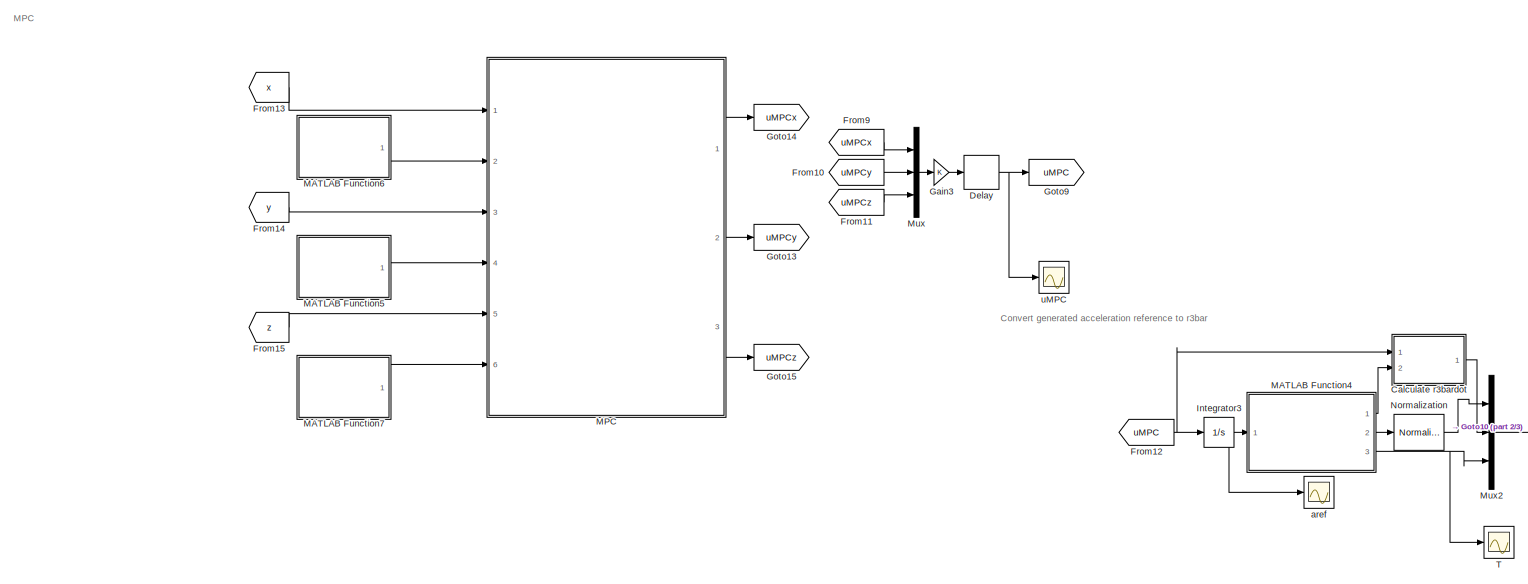
[diagram: root canvas - part 1/3, top left region]
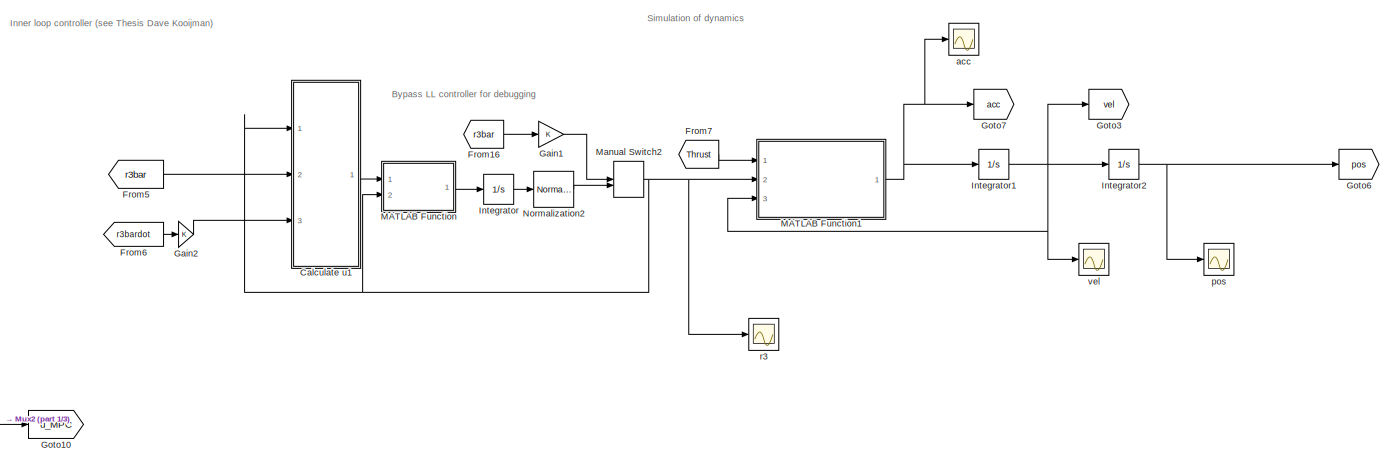
[diagram: root canvas - part 2/3, top right region]
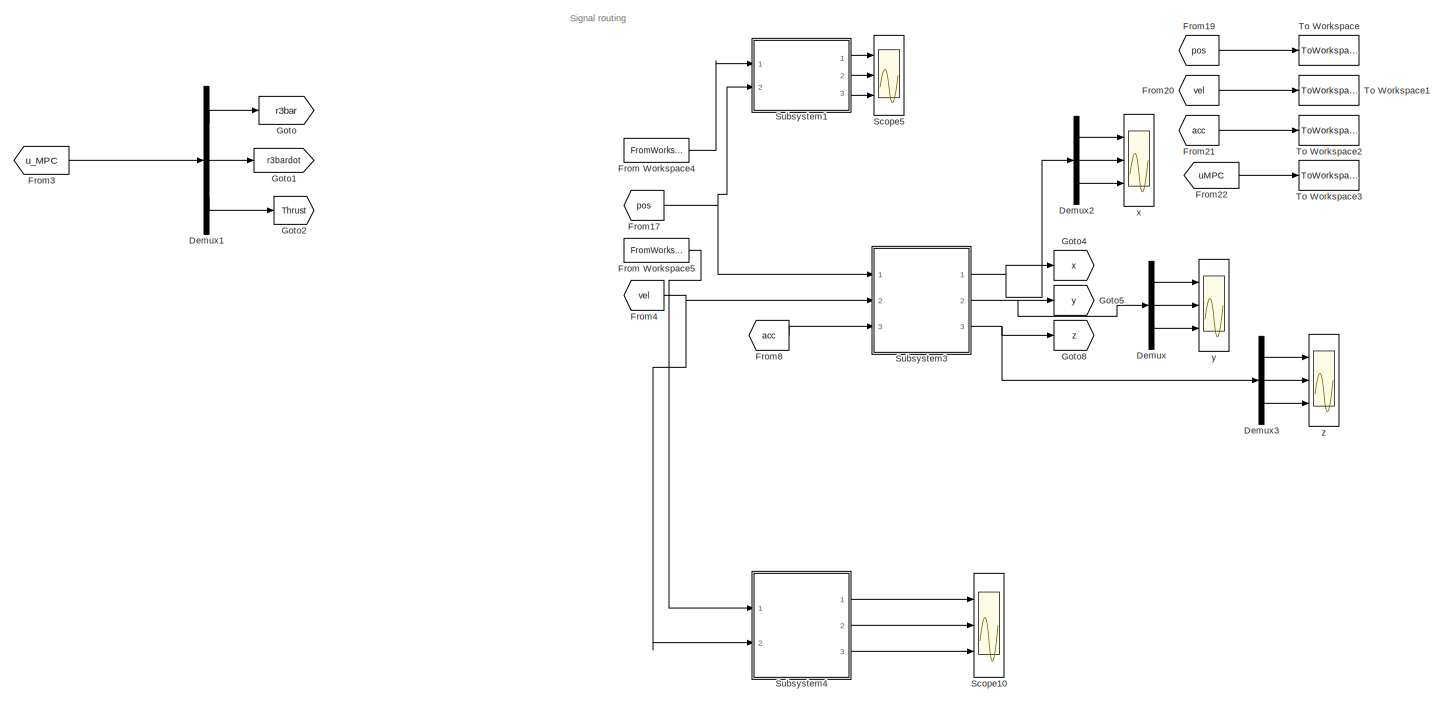
[diagram: root canvas - part 3/3, bottom right region]
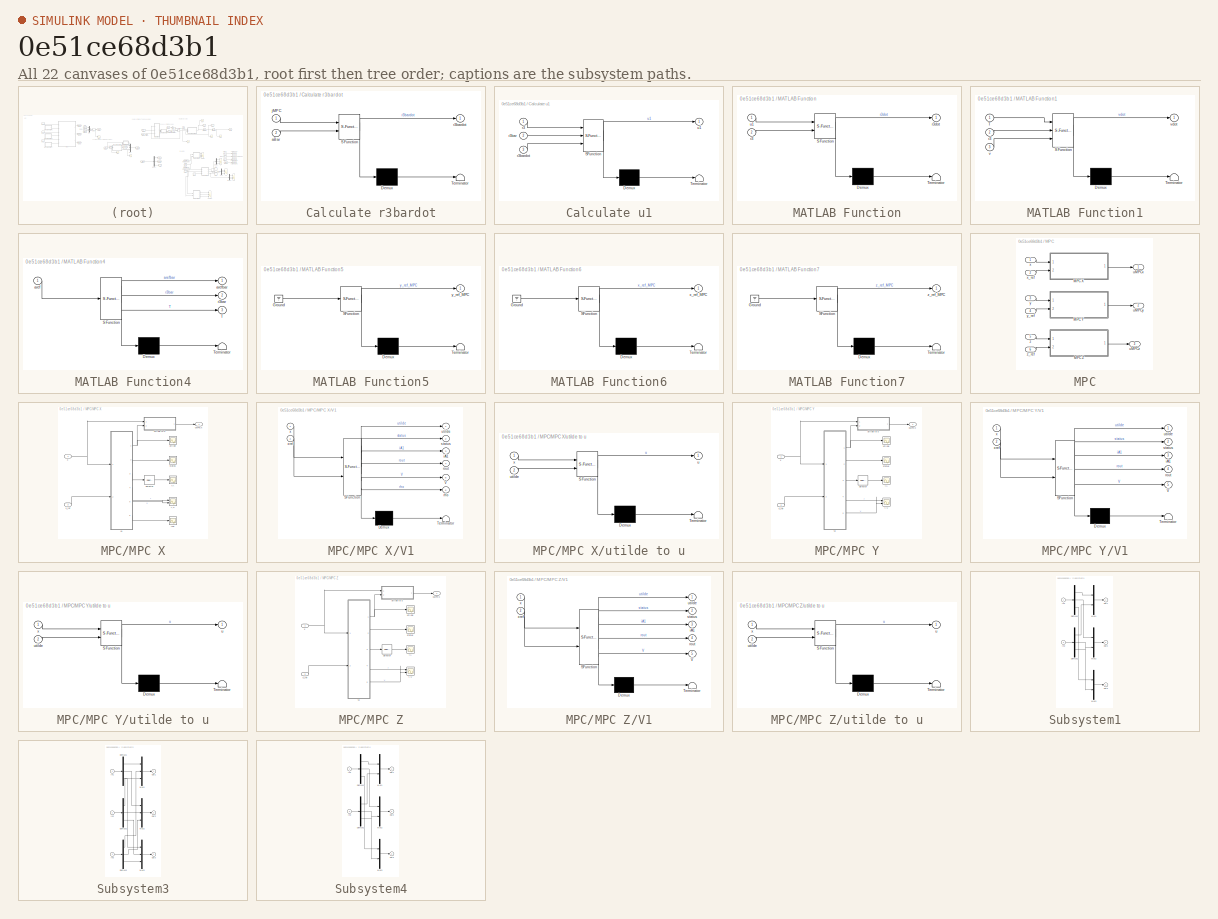
[diagram: thumbnail index - all 22 canvases of the model, root first then tree order]
MODEL slx_0e51ce68d3b1
KIND model
CONFIG AbsTol = auto
CONFIG EnableMultiTasking = off
CONFIG FixedStep = dt
CONFIG MaxStep = auto
CONFIG MinStep = 1e-3
CONFIG RelTol = 1e-3
CONFIG SampleTimeConstraint = Unconstrained
CONFIG Solver = FixedStepAuto
CONFIG SolverName = FixedStepAuto
CONFIG StartTime = 0.0
CONFIG StopTime = tend
BLOCK [SubSystem] Calculate r3bardot
  ErrorFcn = Stateflow.Translate.translate
  PermitHierarchicalResolution = ExplicitOnly
  Ports = [2, 1]
  RequestExecContextInheritance = off
  SFBlockType = MATLAB Function
  TreatAsAtomicUnit = on
BLOCK [Demux] Calculate r3bardot/ Demux 
  Outputs = 1
  Ports = [1, 1]
BLOCK [S-Function] Calculate r3bardot/ SFunction 
  EnableBusSupport = on
  FunctionName = sf_sfun
  PortCounts = [2 2]
  Ports = [2, 2]
  SFcnIsStateOwnerBlock = off
  SFunctionDeploymentMode = off
  Tag = Stateflow S-Function Sim_V1 20
BLOCK [Terminator] Calculate r3bardot/ Terminator 
BLOCK [Inport] Calculate r3bardot/aBar
  IconDisplay = Port number
  Port = 2
BLOCK [Inport] Calculate r3bardot/jMPC
  IconDisplay = Port number
BLOCK [Outport] Calculate r3bardot/r3bardot
  IconDisplay = Port number
BLOCK [SubSystem] Calculate u1
  ErrorFcn = Stateflow.Translate.translate
  PermitHierarchicalResolution = ExplicitOnly
  Ports = [3, 1]
  RequestExecContextInheritance = off
  SFBlockType = MATLAB Function
  TreatAsAtomicUnit = on
BLOCK [Demux] Calculate u1/ Demux 
  Outputs = 1
  Ports = [1, 1]
BLOCK [S-Function] Calculate u1/ SFunction 
  EnableBusSupport = on
  FunctionName = sf_sfun
  PortCounts = [3 2]
  Ports = [3, 2]
  SFcnIsStateOwnerBlock = off
  SFunctionDeploymentMode = off
  Tag = Stateflow S-Function Sim_V1 3
BLOCK [Terminator] Calculate u1/ Terminator 
BLOCK [Inport] Calculate u1/r3
  IconDisplay = Port number
BLOCK [Inport] Calculate u1/r3bar
  IconDisplay = Port number
  Port = 2
BLOCK [Inport] Calculate u1/r3bardot
  IconDisplay = Port number
  Port = 3
BLOCK [Outport] Calculate u1/u1
  IconDisplay = Port number
BLOCK [Delay] Delay
  DelayLength = 1
  InitialCondition = uMPC0
  InputPortMap = u0
  Ports = [1, 1]
  SampleTime = dt
BLOCK [Demux] Demux
  DisplayOption = bar
  Outputs = 3
  Ports = [1, 3]
BLOCK [Demux] Demux1
  DisplayOption = bar
  Outputs = [3,3,1]
  Ports = [1, 3]
BLOCK [Demux] Demux2
  DisplayOption = bar
  Outputs = 3
  Ports = [1, 3]
BLOCK [Demux] Demux3
  DisplayOption = bar
  Outputs = 3
  Ports = [1, 3]
BLOCK [FromWorkspace] From Workspace4
  SampleTime = dt
  VariableName = p_ref
  ZeroCross = on
BLOCK [FromWorkspace] From Workspace5
  SampleTime = dt
  VariableName = v_ref
  ZeroCross = on
BLOCK [From] From10
  GotoTag = uMPCy
BLOCK [From] From11
  GotoTag = uMPCz
BLOCK [From] From12
  GotoTag = uMPC
BLOCK [From] From13
  GotoTag = x
  TagVisibility = global
BLOCK [From] From14
  GotoTag = y
  TagVisibility = global
BLOCK [From] From15
  GotoTag = z
  TagVisibility = global
BLOCK [From] From16
  GotoTag = r3bar
BLOCK [From] From17
  GotoTag = pos
BLOCK [From] From19
  GotoTag = pos
BLOCK [From] From20
  GotoTag = vel
BLOCK [From] From21
  GotoTag = acc
BLOCK [From] From22
  GotoTag = uMPC
BLOCK [From] From3
  GotoTag = u_MPC
BLOCK [From] From4
  GotoTag = vel
BLOCK [From] From5
  GotoTag = r3bar
BLOCK [From] From6
  GotoTag = r3bardot
BLOCK [From] From7
  GotoTag = Thrust
BLOCK [From] From8
  GotoTag = acc
BLOCK [From] From9
  GotoTag = uMPCx
BLOCK [Gain] Gain1
  OutDataTypeStr = Inherit: Inherit via internal rule
  ParamDataTypeStr = Inherit: Inherit via internal rule
  SaturateOnIntegerOverflow = off
BLOCK [Gain] Gain2
  OutDataTypeStr = Inherit: Inherit via internal rule
  ParamDataTypeStr = Inherit: Inherit via internal rule
  SaturateOnIntegerOverflow = off
BLOCK [Gain] Gain3
  OutDataTypeStr = Inherit: Inherit via internal rule
  ParamDataTypeStr = Inherit: Inherit via internal rule
  SaturateOnIntegerOverflow = off
BLOCK [Goto] Goto
  GotoTag = r3bar
BLOCK [Goto] Goto1
  GotoTag = r3bardot
BLOCK [Goto] Goto10
  GotoTag = u_MPC
BLOCK [Goto] Goto13
  GotoTag = uMPCy
BLOCK [Goto] Goto14
  GotoTag = uMPCx
BLOCK [Goto] Goto15
  GotoTag = uMPCz
BLOCK [Goto] Goto2
  GotoTag = Thrust
BLOCK [Goto] Goto3
  GotoTag = vel
BLOCK [Goto] Goto4
  GotoTag = x
  TagVisibility = global
BLOCK [Goto] Goto5
  GotoTag = y
  TagVisibility = global
BLOCK [Goto] Goto6
  GotoTag = pos
BLOCK [Goto] Goto7
  GotoTag = acc
BLOCK [Goto] Goto8
  GotoTag = z
  TagVisibility = global
BLOCK [Goto] Goto9
  GotoTag = uMPC
BLOCK [Integrator] Integrator
  InitialCondition = r30
  Ports = [1, 1]
BLOCK [Integrator] Integrator1
  InitialCondition = v0
  Ports = [1, 1]
BLOCK [Integrator] Integrator2
  InitialCondition = p0
  Ports = [1, 1]
BLOCK [Integrator] Integrator3
  InitialCondition = aref0
  Ports = [1, 1]
BLOCK [SubSystem] MATLAB Function
  ErrorFcn = Stateflow.Translate.translate
  PermitHierarchicalResolution = ExplicitOnly
  Ports = [2, 1]
  RequestExecContextInheritance = off
  SFBlockType = MATLAB Function
  TreatAsAtomicUnit = on
BLOCK [Demux] MATLAB Function/ Demux 
  Outputs = 1
  Ports = [1, 1]
BLOCK [S-Function] MATLAB Function/ SFunction 
  EnableBusSupport = on
  FunctionName = sf_sfun
  PortCounts = [2 2]
  Ports = [2, 2]
  SFcnIsStateOwnerBlock = off
  SFunctionDeploymentMode = off
  Tag = Stateflow S-Function Sim_V1 4
BLOCK [Terminator] MATLAB Function/ Terminator 
BLOCK [Inport] MATLAB Function/r3
  IconDisplay = Port number
  Port = 2
BLOCK [Outport] MATLAB Function/r3dot
  IconDisplay = Port number
BLOCK [Inport] MATLAB Function/u1
  IconDisplay = Port number
BLOCK [SubSystem] MATLAB Function1
  ErrorFcn = Stateflow.Translate.translate
  PermitHierarchicalResolution = ExplicitOnly
  Ports = [3, 1]
  RequestExecContextInheritance = off
  SFBlockType = MATLAB Function
  TreatAsAtomicUnit = on
BLOCK [Demux] MATLAB Function1/ Demux 
  Outputs = 1
  Ports = [1, 1]
BLOCK [S-Function] MATLAB Function1/ SFunction 
  EnableBusSupport = on
  FunctionName = sf_sfun
  Parameters = quad_params
  PortCounts = [3 2]
  Ports = [3, 2]
  SFcnIsStateOwnerBlock = off
  SFunctionDeploymentMode = off
  Tag = Stateflow S-Function Sim_V1 2
BLOCK [Terminator] MATLAB Function1/ Terminator 
BLOCK [Inport] MATLAB Function1/T
  IconDisplay = Port number
BLOCK [Inport] MATLAB Function1/r3
  IconDisplay = Port number
  Port = 2
BLOCK [Inport] MATLAB Function1/v
  IconDisplay = Port number
  Port = 3
BLOCK [Outport] MATLAB Function1/vdot
  IconDisplay = Port number
BLOCK [SubSystem] MATLAB Function4
  ErrorFcn = Stateflow.Translate.translate
  PermitHierarchicalResolution = ExplicitOnly
  Ports = [1, 3]
  RequestExecContextInheritance = off
  SFBlockType = MATLAB Function
  TreatAsAtomicUnit = on
BLOCK [Demux] MATLAB Function4/ Demux 
  Outputs = 1
  Ports = [1, 1]
BLOCK [S-Function] MATLAB Function4/ SFunction 
  EnableBusSupport = on
  FunctionName = sf_sfun
  Parameters = quad_params
  PortCounts = [1 4]
  Ports = [1, 4]
  SFcnIsStateOwnerBlock = off
  SFunctionDeploymentMode = off
  Tag = Stateflow S-Function Sim_V1 19
BLOCK [Terminator] MATLAB Function4/ Terminator 
BLOCK [Outport] MATLAB Function4/T
  IconDisplay = Port number
  Port = 3
BLOCK [Inport] MATLAB Function4/aref
  IconDisplay = Port number
BLOCK [Outport] MATLAB Function4/arefbar
  IconDisplay = Port number
BLOCK [Outport] MATLAB Function4/r3bar
  IconDisplay = Port number
  Port = 2
BLOCK [SubSystem] MATLAB Function5
  ErrorFcn = Stateflow.Translate.translate
  MinAlgLoopOccurrences = on
  PermitHierarchicalResolution = ExplicitOnly
  Ports = [0, 1]
  RequestExecContextInheritance = off
  SFBlockType = MATLAB Function
  TreatAsAtomicUnit = on
BLOCK [Demux] MATLAB Function5/ Demux 
  Outputs = 1
  Ports = [1, 1]
BLOCK [Ground] MATLAB Function5/ Ground 
BLOCK [S-Function] MATLAB Function5/ SFunction 
  EnableBusSupport = on
  FunctionName = sf_sfun
  Parameters = mpc_params
  PortCounts = [1 2]
  Ports = [1, 2]
  SFcnIsStateOwnerBlock = off
  SFunctionDeploymentMode = off
  Tag = Stateflow S-Function Sim_V1 11
BLOCK [Terminator] MATLAB Function5/ Terminator 
BLOCK [Outport] MATLAB Function5/y_ref_MPC
  IconDisplay = Port number
BLOCK [SubSystem] MATLAB Function6
  ErrorFcn = Stateflow.Translate.translate
  MinAlgLoopOccurrences = on
  PermitHierarchicalResolution = ExplicitOnly
  Ports = [0, 1]
  RequestExecContextInheritance = off
  SFBlockType = MATLAB Function
  TreatAsAtomicUnit = on
BLOCK [Demux] MATLAB Function6/ Demux 
  Outputs = 1
  Ports = [1, 1]
BLOCK [Ground] MATLAB Function6/ Ground 
BLOCK [S-Function] MATLAB Function6/ SFunction 
  EnableBusSupport = on
  FunctionName = sf_sfun
  Parameters = mpc_params
  PortCounts = [1 2]
  Ports = [1, 2]
  SFcnIsStateOwnerBlock = off
  SFunctionDeploymentMode = off
  Tag = Stateflow S-Function Sim_V1 14
BLOCK [Terminator] MATLAB Function6/ Terminator 
BLOCK [Outport] MATLAB Function6/x_ref_MPC
  IconDisplay = Port number
BLOCK [SubSystem] MATLAB Function7
  ErrorFcn = Stateflow.Translate.translate
  PermitHierarchicalResolution = ExplicitOnly
  Ports = [0, 1]
  RequestExecContextInheritance = off
  SFBlockType = MATLAB Function
  TreatAsAtomicUnit = on
BLOCK [Demux] MATLAB Function7/ Demux 
  Outputs = 1
  Ports = [1, 1]
BLOCK [Ground] MATLAB Function7/ Ground 
BLOCK [S-Function] MATLAB Function7/ SFunction 
  EnableBusSupport = on
  FunctionName = sf_sfun
  Parameters = mpc_params
  PortCounts = [1 2]
  Ports = [1, 2]
  SFcnIsStateOwnerBlock = off
  SFunctionDeploymentMode = off
  Tag = Stateflow S-Function Sim_V1 22
BLOCK [Terminator] MATLAB Function7/ Terminator 
BLOCK [Outport] MATLAB Function7/z_ref_MPC
  IconDisplay = Port number
BLOCK [SubSystem] MPC
  Ports = [6, 3]
  RequestExecContextInheritance = off
BLOCK [SubSystem] MPC/MPC X
  Ports = [2, 1]
  RequestExecContextInheritance = off
BLOCK [Selector] MPC/MPC X/Selector
  IndexOptions = Index vector (dialog)
  Indices = nconstr-1:nconstr
  InputPortWidth = nconstr
  OutputSizes = 1
  Ports = [1, 1]
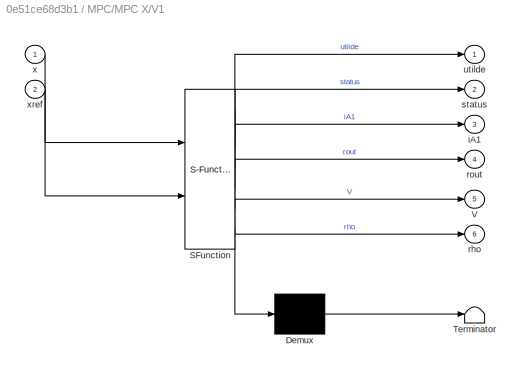
BLOCK [SubSystem] MPC/MPC X/V1
  ErrorFcn = Stateflow.Translate.translate
  PermitHierarchicalResolution = ExplicitOnly
  Ports = [2, 6]
  RequestExecContextInheritance = off
  SFBlockType = MATLAB Function
  SystemSampleTime = dt_MPC
  TreatAsAtomicUnit = on
BLOCK [Demux] MPC/MPC X/V1/ Demux 
  Outputs = 1
  Ports = [1, 1]
BLOCK [S-Function] MPC/MPC X/V1/ SFunction 
  EnableBusSupport = on
  FunctionName = sf_sfun
  Parameters = mpc_params
  PortCounts = [2 7]
  Ports = [2, 7]
  SFcnIsStateOwnerBlock = off
  SFunctionDeploymentMode = off
  Tag = Stateflow S-Function Sim_V1 6
BLOCK [Terminator] MPC/MPC X/V1/ Terminator 
BLOCK [Outport] MPC/MPC X/V1/V
  IconDisplay = Port number
  Port = 5
BLOCK [Outport] MPC/MPC X/V1/iA1
  IconDisplay = Port number
  Port = 3
BLOCK [Outport] MPC/MPC X/V1/rho
  IconDisplay = Port number
  Port = 6
BLOCK [Outport] MPC/MPC X/V1/rout
  IconDisplay = Port number
  Port = 4
BLOCK [Outport] MPC/MPC X/V1/status
  IconDisplay = Port number
  Port = 2
BLOCK [Outport] MPC/MPC X/V1/utilde
  IconDisplay = Port number
BLOCK [Inport] MPC/MPC X/V1/x
  IconDisplay = Port number
BLOCK [Inport] MPC/MPC X/V1/xref
  IconDisplay = Port number
  Port = 2
BLOCK [Scope] MPC/MPC X/iA
  Floating = off
  NumInputPorts = 1
  Ports = [1]
  ScopeSpecificationString = Simulink.scopes.TimeScopeBlockCfg('CurrentConfiguration', extmgr.ConfigurationSet(extmgr.Configuration('Core','General UI',true),extmgr.Configuration('Core','Source UI',true),extmgr.Configuration('Sources','WiredSimulink',true,'DataLoggingVariableName','ScopeData1'),extmgr.Configuration('Visuals','Time Domain',true,'SerializedDisplays',{struct('MinYLimReal','-0.125','MaxYLimReal','1.125','YLabelRe...<+1446ch>  <repeated x3 — deduplicated; at blocks: iA>
BLOCK [Scope] MPC/MPC X/r,V
  Floating = off
  NumInputPorts = 2
  Ports = [2]
  ScopeSpecificationString = Simulink.scopes.TimeScopeBlockCfg('CurrentConfiguration', extmgr.ConfigurationSet(extmgr.Configuration('Core','General UI',true),extmgr.Configuration('Core','Source UI',true),extmgr.Configuration('Sources','WiredSimulink',true,'DataLoggingVariableName','ScopeData1'),extmgr.Configuration('Visuals','Time Domain',true,'SerializedDisplays',{struct('MinYLimReal','0.00195','MaxYLimReal','0.00955','YLabe...<+2104ch>
BLOCK [Scope] MPC/MPC X/rho
  Floating = off
  NumInputPorts = 1
  Ports = [1]
  ScopeSpecificationString = Simulink.scopes.TimeScopeBlockCfg('CurrentConfiguration', extmgr.ConfigurationSet(extmgr.Configuration('Core','General UI',true),extmgr.Configuration('Core','Source UI',true),extmgr.Configuration('Sources','WiredSimulink',true,'DataLoggingVariableName','ScopeData1'),extmgr.Configuration('Visuals','Time Domain',true,'SerializedDisplays',{struct('MinYLimReal','-0.00611','MaxYLimReal','0.06174','YLab...<+1441ch>
BLOCK [Scope] MPC/MPC X/status
  Floating = off
  NumInputPorts = 1
  Ports = [1]
  ScopeSpecificationString = Simulink.scopes.TimeScopeBlockCfg('CurrentConfiguration', extmgr.ConfigurationSet(extmgr.Configuration('Core','General UI',true),extmgr.Configuration('Core','Source UI',true),extmgr.Configuration('Sources','WiredSimulink',true,'DataLoggingVariableName','ScopeData3'),extmgr.Configuration('Visuals','Time Domain',true,'SerializedDisplays',{struct('MinYLimReal','-1.125','MaxYLimReal','20.125','YLabelR...<+1433ch>  <repeated x3 — deduplicated; at blocks: status>
BLOCK [Outport] MPC/MPC X/uMPCx
  IconDisplay = Port number
BLOCK [Scope] MPC/MPC X/utilde
  Floating = off
  NumInputPorts = 1
  Ports = [1]
  ScopeSpecificationString = Simulink.scopes.TimeScopeBlockCfg('CurrentConfiguration', extmgr.ConfigurationSet(extmgr.Configuration('Core','General UI',true),extmgr.Configuration('Core','Source UI',true),extmgr.Configuration('Sources','WiredSimulink',true,'DataLoggingVariableName','ScopeData2'),extmgr.Configuration('Visuals','Time Domain',true,'SerializedDisplays',{struct('MinYLimReal','1.56359','MaxYLimReal','1.5769','YLabel...<+1461ch>
BLOCK [SubSystem] MPC/MPC X/utilde to u
  ErrorFcn = Stateflow.Translate.translate
  PermitHierarchicalResolution = ExplicitOnly
  Ports = [2, 1]
  RequestExecContextInheritance = off
  SFBlockType = MATLAB Function
  TreatAsAtomicUnit = on
BLOCK [Demux] MPC/MPC X/utilde to u/ Demux 
  Outputs = 1
  Ports = [1, 1]
BLOCK [S-Function] MPC/MPC X/utilde to u/ SFunction 
  EnableBusSupport = on
  FunctionName = sf_sfun
  Parameters = mpc_params
  PortCounts = [2 2]
  Ports = [2, 2]
  SFcnIsStateOwnerBlock = off
  SFunctionDeploymentMode = off
  Tag = Stateflow S-Function Sim_V1 7
BLOCK [Terminator] MPC/MPC X/utilde to u/ Terminator 
BLOCK [Outport] MPC/MPC X/utilde to u/u
  IconDisplay = Port number
BLOCK [Inport] MPC/MPC X/utilde to u/utilde
  IconDisplay = Port number
  Port = 2
BLOCK [Inport] MPC/MPC X/utilde to u/x
  IconDisplay = Port number
BLOCK [Inport] MPC/MPC X/x
  IconDisplay = Port number
BLOCK [Inport] MPC/MPC X/x_ref
  IconDisplay = Port number
  Port = 2
BLOCK [SubSystem] MPC/MPC Y
  Ports = [2, 1]
  RequestExecContextInheritance = off
BLOCK [Selector] MPC/MPC Y/Selector
  IndexOptions = Index vector (dialog)
  Indices = nconstr-1:nconstr
  InputPortWidth = nconstr
  OutputSizes = 1
  Ports = [1, 1]
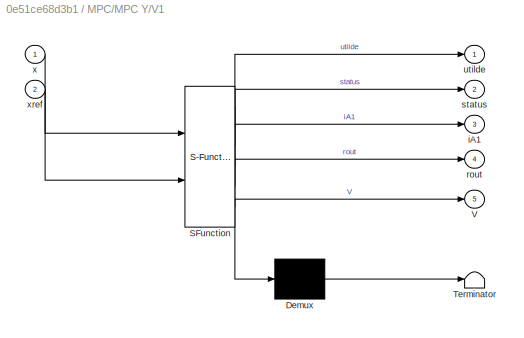
BLOCK [SubSystem] MPC/MPC Y/V1
  ErrorFcn = Stateflow.Translate.translate
  PermitHierarchicalResolution = ExplicitOnly
  Ports = [2, 5]
  RequestExecContextInheritance = off
  SFBlockType = MATLAB Function
  SystemSampleTime = dt_MPC
  TreatAsAtomicUnit = on
BLOCK [Demux] MPC/MPC Y/V1/ Demux 
  Outputs = 1
  Ports = [1, 1]
BLOCK [S-Function] MPC/MPC Y/V1/ SFunction 
  EnableBusSupport = on
  FunctionName = sf_sfun
  Parameters = mpc_params
  PortCounts = [2 6]
  Ports = [2, 6]
  SFcnIsStateOwnerBlock = off
  SFunctionDeploymentMode = off
  Tag = Stateflow S-Function Sim_V1 1
BLOCK [Terminator] MPC/MPC Y/V1/ Terminator 
BLOCK [Outport] MPC/MPC Y/V1/V
  IconDisplay = Port number
  Port = 5
BLOCK [Outport] MPC/MPC Y/V1/iA1
  IconDisplay = Port number
  Port = 3
BLOCK [Outport] MPC/MPC Y/V1/rout
  IconDisplay = Port number
  Port = 4
BLOCK [Outport] MPC/MPC Y/V1/status
  IconDisplay = Port number
  Port = 2
BLOCK [Outport] MPC/MPC Y/V1/utilde
  IconDisplay = Port number
BLOCK [Inport] MPC/MPC Y/V1/x
  IconDisplay = Port number
BLOCK [Inport] MPC/MPC Y/V1/xref
  IconDisplay = Port number
  Port = 2
BLOCK [Scope] MPC/MPC Y/iA
  Floating = off
  NumInputPorts = 1
  Ports = [1]
BLOCK [Scope] MPC/MPC Y/r,V
  Floating = off
  NumInputPorts = 2
  Ports = [2]
  ScopeSpecificationString = Simulink.scopes.TimeScopeBlockCfg('CurrentConfiguration', extmgr.ConfigurationSet(extmgr.Configuration('Core','General UI',true),extmgr.Configuration('Core','Source UI',true),extmgr.Configuration('Sources','WiredSimulink',true,'DataLoggingVariableName','ScopeData1'),extmgr.Configuration('Visuals','Time Domain',true,'SerializedDisplays',{struct('MinYLimReal','-0.0596','MaxYLimReal','1.10662','YLabe...<+2075ch>
BLOCK [Scope] MPC/MPC Y/status
  Floating = off
  NumInputPorts = 1
  Ports = [1]
BLOCK [Outport] MPC/MPC Y/uMPCx
  IconDisplay = Port number
BLOCK [Scope] MPC/MPC Y/utilde
  Floating = off
  NumInputPorts = 1
  Ports = [1]
  ScopeSpecificationString = Simulink.scopes.TimeScopeBlockCfg('CurrentConfiguration', extmgr.ConfigurationSet(extmgr.Configuration('Core','General UI',true),extmgr.Configuration('Core','Source UI',true),extmgr.Configuration('Sources','WiredSimulink',true,'DataLoggingVariableName','ScopeData2'),extmgr.Configuration('Visuals','Time Domain',true,'SerializedDisplays',{struct('MinYLimReal','-62.5','MaxYLimReal','62.5','YLabelReal...<+1423ch>
BLOCK [SubSystem] MPC/MPC Y/utilde to u
  ErrorFcn = Stateflow.Translate.translate
  PermitHierarchicalResolution = ExplicitOnly
  Ports = [2, 1]
  RequestExecContextInheritance = off
  SFBlockType = MATLAB Function
  TreatAsAtomicUnit = on
BLOCK [Demux] MPC/MPC Y/utilde to u/ Demux 
  Outputs = 1
  Ports = [1, 1]
BLOCK [S-Function] MPC/MPC Y/utilde to u/ SFunction 
  EnableBusSupport = on
  FunctionName = sf_sfun
  Parameters = mpc_params
  PortCounts = [2 2]
  Ports = [2, 2]
  SFcnIsStateOwnerBlock = off
  SFunctionDeploymentMode = off
  Tag = Stateflow S-Function Sim_V1 5
BLOCK [Terminator] MPC/MPC Y/utilde to u/ Terminator 
BLOCK [Outport] MPC/MPC Y/utilde to u/u
  IconDisplay = Port number
BLOCK [Inport] MPC/MPC Y/utilde to u/utilde
  IconDisplay = Port number
  Port = 2
BLOCK [Inport] MPC/MPC Y/utilde to u/x
  IconDisplay = Port number
BLOCK [Inport] MPC/MPC Y/x
  IconDisplay = Port number
BLOCK [Inport] MPC/MPC Y/x_ref
  IconDisplay = Port number
  Port = 2
BLOCK [SubSystem] MPC/MPC Z
  Ports = [2, 1]
  RequestExecContextInheritance = off
BLOCK [Selector] MPC/MPC Z/Selector
  IndexOptions = Index vector (dialog)
  Indices = nconstr-1:nconstr
  InputPortWidth = nconstr
  OutputSizes = 1
  Ports = [1, 1]
BLOCK [SubSystem] MPC/MPC Z/V1
  ErrorFcn = Stateflow.Translate.translate
  PermitHierarchicalResolution = ExplicitOnly
  Ports = [2, 5]
  RequestExecContextInheritance = off
  SFBlockType = MATLAB Function
  SystemSampleTime = dt_MPC
  TreatAsAtomicUnit = on
BLOCK [Demux] MPC/MPC Z/V1/ Demux 
  Outputs = 1
  Ports = [1, 1]
BLOCK [S-Function] MPC/MPC Z/V1/ SFunction 
  EnableBusSupport = on
  FunctionName = sf_sfun
  Parameters = mpc_params
  PortCounts = [2 6]
  Ports = [2, 6]
  SFcnIsStateOwnerBlock = off
  SFunctionDeploymentMode = off
  Tag = Stateflow S-Function Sim_V1 8
BLOCK [Terminator] MPC/MPC Z/V1/ Terminator 
BLOCK [Outport] MPC/MPC Z/V1/V
  IconDisplay = Port number
  Port = 5
BLOCK [Outport] MPC/MPC Z/V1/iA1
  IconDisplay = Port number
  Port = 3
BLOCK [Outport] MPC/MPC Z/V1/rout
  IconDisplay = Port number
  Port = 4
BLOCK [Outport] MPC/MPC Z/V1/status
  IconDisplay = Port number
  Port = 2
BLOCK [Outport] MPC/MPC Z/V1/utilde
  IconDisplay = Port number
BLOCK [Inport] MPC/MPC Z/V1/x
  IconDisplay = Port number
BLOCK [Inport] MPC/MPC Z/V1/xref
  IconDisplay = Port number
  Port = 2
BLOCK [Scope] MPC/MPC Z/iA
  Floating = off
  NumInputPorts = 1
  Ports = [1]
BLOCK [Scope] MPC/MPC Z/r,V
  Floating = off
  NumInputPorts = 2
  Ports = [2]
  ScopeSpecificationString = Simulink.scopes.TimeScopeBlockCfg('CurrentConfiguration', extmgr.ConfigurationSet(extmgr.Configuration('Core','General UI',true),extmgr.Configuration('Core','Source UI',true),extmgr.Configuration('Sources','WiredSimulink',true,'DataLoggingVariableName','ScopeData1'),extmgr.Configuration('Visuals','Time Domain',true,'SerializedDisplays',{struct('MinYLimReal','-0.07863','MaxYLimReal','1.10874','YLab...<+2076ch>
BLOCK [Scope] MPC/MPC Z/status
  Floating = off
  NumInputPorts = 1
  Ports = [1]
BLOCK [Outport] MPC/MPC Z/uMPCx
  IconDisplay = Port number
BLOCK [Scope] MPC/MPC Z/utilde
  Floating = off
  NumInputPorts = 1
  Ports = [1]
  ScopeSpecificationString = Simulink.scopes.TimeScopeBlockCfg('CurrentConfiguration', extmgr.ConfigurationSet(extmgr.Configuration('Core','General UI',true),extmgr.Configuration('Core','Source UI',true),extmgr.Configuration('Sources','WiredSimulink',true,'DataLoggingVariableName','ScopeData2'),extmgr.Configuration('Visuals','Time Domain',true,'SerializedDisplays',{struct('MinYLimReal','-62.5','MaxYLimReal','62.5','YLabelReal...<+1423ch>
BLOCK [SubSystem] MPC/MPC Z/utilde to u
  ErrorFcn = Stateflow.Translate.translate
  PermitHierarchicalResolution = ExplicitOnly
  Ports = [2, 1]
  RequestExecContextInheritance = off
  SFBlockType = MATLAB Function
  TreatAsAtomicUnit = on
BLOCK [Demux] MPC/MPC Z/utilde to u/ Demux 
  Outputs = 1
  Ports = [1, 1]
BLOCK [S-Function] MPC/MPC Z/utilde to u/ SFunction 
  EnableBusSupport = on
  FunctionName = sf_sfun
  Parameters = mpc_params
  PortCounts = [2 2]
  Ports = [2, 2]
  SFcnIsStateOwnerBlock = off
  SFunctionDeploymentMode = off
  Tag = Stateflow S-Function Sim_V1 9
BLOCK [Terminator] MPC/MPC Z/utilde to u/ Terminator 
BLOCK [Outport] MPC/MPC Z/utilde to u/u
  IconDisplay = Port number
BLOCK [Inport] MPC/MPC Z/utilde to u/utilde
  IconDisplay = Port number
  Port = 2
BLOCK [Inport] MPC/MPC Z/utilde to u/x
  IconDisplay = Port number
BLOCK [Inport] MPC/MPC Z/x
  IconDisplay = Port number
BLOCK [Inport] MPC/MPC Z/x_ref
  IconDisplay = Port number
  Port = 2
BLOCK [Outport] MPC/uMPCx
  IconDisplay = Port number
BLOCK [Outport] MPC/uMPCy
  IconDisplay = Port number
  Port = 2
BLOCK [Outport] MPC/uMPCz
  IconDisplay = Port number
  Port = 3
BLOCK [Inport] MPC/x
  IconDisplay = Port number
BLOCK [Inport] MPC/x_ref
  IconDisplay = Port number
  Port = 2
BLOCK [Inport] MPC/y
  IconDisplay = Port number
  Port = 3
BLOCK [Inport] MPC/y_ref
  IconDisplay = Port number
  Port = 4
BLOCK [Inport] MPC/z
  IconDisplay = Port number
  Port = 5
BLOCK [Inport] MPC/z_ref
  IconDisplay = Port number
  Port = 6
BLOCK [ManualSwitch] Manual Switch2
  CurrentSetting = 0
BLOCK [Mux] Mux
  DisplayOption = bar
  Inputs = 3
  Ports = [3, 1]
BLOCK [Mux] Mux2
  DisplayOption = bar
  Inputs = 3
  Ports = [3, 1]
BLOCK [Reference] Normalization  REF=dspmathops/Normalization
  Ports = [1, 1]
  SourceBlock = dspmathops/Normalization
  SourceProductBaseCode = DS
  SourceProductName = DSP System Toolbox
  SourceType = Normalization
BLOCK [Reference] Normalization2  REF=dspmathops/Normalization
  Ports = [1, 1]
  SourceBlock = dspmathops/Normalization
  SourceProductBaseCode = DS
  SourceProductName = DSP System Toolbox
  SourceType = Normalization
BLOCK [Scope] Scope10
  Floating = off
  NumInputPorts = 3
  Ports = [3]
  ScopeSpecificationString = Simulink.scopes.TimeScopeBlockCfg('CurrentConfiguration', extmgr.ConfigurationSet(extmgr.Configuration('Core','General UI',true),extmgr.Configuration('Core','Source UI',true),extmgr.Configuration('Sources','WiredSimulink',true,'DataLoggingVariableName','ScopeData1'),extmgr.Configuration('Visuals','Time Domain',true,'SerializedDisplays',{struct('MinYLimReal','-1.00000','MaxYLimReal','1.00000','YLab...<+2918ch>
BLOCK [Scope] Scope5
  Floating = off
  NumInputPorts = 3
  Ports = [3]
  ScopeSpecificationString = Simulink.scopes.TimeScopeBlockCfg('CurrentConfiguration', extmgr.ConfigurationSet(extmgr.Configuration('Core','General UI',true),extmgr.Configuration('Core','Source UI',true),extmgr.Configuration('Sources','WiredSimulink',true,'DataLoggingVariableName','ScopeData5'),extmgr.Configuration('Visuals','Time Domain',true,'SerializedDisplays',{struct('MinYLimReal','-24.68878','MaxYLimReal','25.51791','YL...<+2907ch>
BLOCK [SubSystem] Subsystem1
  Ports = [2, 3]
  RequestExecContextInheritance = off
BLOCK [Demux] Subsystem1/Demux1
  DisplayOption = bar
  Outputs = 3
  Ports = [1, 3]
BLOCK [Demux] Subsystem1/Demux2
  DisplayOption = bar
  Outputs = 3
  Ports = [1, 3]
BLOCK [Inport] Subsystem1/In1
  IconDisplay = Port number
BLOCK [Inport] Subsystem1/In2
  IconDisplay = Port number
  Port = 2
BLOCK [Mux] Subsystem1/Mux1
  DisplayOption = bar
  Inputs = 2
  Ports = [2, 1]
BLOCK [Mux] Subsystem1/Mux2
  DisplayOption = bar
  Inputs = 2
  Ports = [2, 1]
BLOCK [Mux] Subsystem1/Mux3
  DisplayOption = bar
  Inputs = 2
  Ports = [2, 1]
BLOCK [Outport] Subsystem1/Out1
  IconDisplay = Port number
BLOCK [Outport] Subsystem1/Out2
  IconDisplay = Port number
  Port = 2
BLOCK [Outport] Subsystem1/Out3
  IconDisplay = Port number
  Port = 3
BLOCK [SubSystem] Subsystem3
  Ports = [3, 3]
  RequestExecContextInheritance = off
BLOCK [Demux] Subsystem3/Demux1
  DisplayOption = bar
  Outputs = 3
  Ports = [1, 3]
BLOCK [Demux] Subsystem3/Demux2
  DisplayOption = bar
  Outputs = 3
  Ports = [1, 3]
BLOCK [Demux] Subsystem3/Demux3
  DisplayOption = bar
  Outputs = 3
  Ports = [1, 3]
BLOCK [Inport] Subsystem3/In1
  IconDisplay = Port number
BLOCK [Inport] Subsystem3/In2
  IconDisplay = Port number
  Port = 2
BLOCK [Inport] Subsystem3/In3
  IconDisplay = Port number
  Port = 3
BLOCK [Mux] Subsystem3/Mux1
  DisplayOption = bar
  Inputs = 3
  Ports = [3, 1]
BLOCK [Mux] Subsystem3/Mux2
  DisplayOption = bar
  Inputs = 3
  Ports = [3, 1]
BLOCK [Mux] Subsystem3/Mux3
  DisplayOption = bar
  Inputs = 3
  Ports = [3, 1]
BLOCK [Outport] Subsystem3/Out1
  IconDisplay = Port number
BLOCK [Outport] Subsystem3/Out2
  IconDisplay = Port number
  Port = 2
BLOCK [Outport] Subsystem3/Out3
  IconDisplay = Port number
  Port = 3
BLOCK [SubSystem] Subsystem4
  Ports = [2, 3]
  RequestExecContextInheritance = off
BLOCK [Demux] Subsystem4/Demux1
  DisplayOption = bar
  Outputs = 3
  Ports = [1, 3]
BLOCK [Demux] Subsystem4/Demux2
  DisplayOption = bar
  Outputs = 3
  Ports = [1, 3]
BLOCK [Inport] Subsystem4/In1
  IconDisplay = Port number
BLOCK [Inport] Subsystem4/In2
  IconDisplay = Port number
  Port = 2
BLOCK [Mux] Subsystem4/Mux1
  DisplayOption = bar
  Inputs = 2
  Ports = [2, 1]
BLOCK [Mux] Subsystem4/Mux2
  DisplayOption = bar
  Inputs = 2
  Ports = [2, 1]
BLOCK [Mux] Subsystem4/Mux3
  DisplayOption = bar
  Inputs = 2
  Ports = [2, 1]
BLOCK [Outport] Subsystem4/Out1
  IconDisplay = Port number
BLOCK [Outport] Subsystem4/Out2
  IconDisplay = Port number
  Port = 2
BLOCK [Outport] Subsystem4/Out3
  IconDisplay = Port number
  Port = 3
BLOCK [Scope] T
  Floating = off
  NumInputPorts = 1
  Ports = [1]
  ScopeSpecificationString = Simulink.scopes.TimeScopeBlockCfg('CurrentConfiguration', extmgr.ConfigurationSet(extmgr.Configuration('Core','General UI',true),extmgr.Configuration('Core','Source UI',true),extmgr.Configuration('Sources','WiredSimulink',true,'DataLoggingVariableName','ScopeData1'),extmgr.Configuration('Visuals','Time Domain',true,'SerializedDisplays',{struct('MinYLimReal','9.80933','MaxYLimReal','9.81126','YLabe...<+1447ch>
BLOCK [ToWorkspace] To Workspace
  FixptAsFi = on
  MaxDataPoints = inf
  Ports = [1]
  SampleTime = -1
  Save2DSignal = 2-D array (concatenate along first dimension)
  VariableName = pos
BLOCK [ToWorkspace] To Workspace1
  FixptAsFi = on
  MaxDataPoints = inf
  Ports = [1]
  SampleTime = -1
  Save2DSignal = 2-D array (concatenate along first dimension)
  VariableName = vel
BLOCK [ToWorkspace] To Workspace2
  FixptAsFi = on
  MaxDataPoints = inf
  Ports = [1]
  SampleTime = -1
  Save2DSignal = 2-D array (concatenate along first dimension)
  VariableName = acc
BLOCK [ToWorkspace] To Workspace3
  FixptAsFi = on
  MaxDataPoints = inf
  Ports = [1]
  SampleTime = -1
  Save2DSignal = 2-D array (concatenate along first dimension)
  VariableName = uMPC
BLOCK [Scope] acc
  Floating = off
  NumInputPorts = 1
  Ports = [1]
  ScopeSpecificationString = Simulink.scopes.TimeScopeBlockCfg('CurrentConfiguration', extmgr.ConfigurationSet(extmgr.Configuration('Core','General UI',true),extmgr.Configuration('Core','Source UI',true),extmgr.Configuration('Sources','WiredSimulink',true,'DataLoggingVariableName','ScopeData2'),extmgr.Configuration('Visuals','Time Domain',true,'SerializedDisplays',{struct('MinYLimReal','-3.04878','MaxYLimReal','3.04878','YLab...<+1495ch>
BLOCK [Scope] aref
  Floating = off
  NumInputPorts = 1
  Ports = [1]
  ScopeSpecificationString = Simulink.scopes.TimeScopeBlockCfg('CurrentConfiguration', extmgr.ConfigurationSet(extmgr.Configuration('Core','General UI',true),extmgr.Configuration('Core','Source UI',true),extmgr.Configuration('Sources','WiredSimulink',true,'DataLoggingVariableName','ScopeData2'),extmgr.Configuration('Visuals','Time Domain',true,'SerializedDisplays',{struct('MinYLimReal','-2.62838','MaxYLimReal','5.44486','YLab...<+1477ch>
BLOCK [Scope] pos
  Floating = off
  NumInputPorts = 1
  Ports = [1]
  ScopeSpecificationString = Simulink.scopes.TimeScopeBlockCfg('CurrentConfiguration', extmgr.ConfigurationSet(extmgr.Configuration('Core','General UI',true),extmgr.Configuration('Core','Source UI',true),extmgr.Configuration('Sources','WiredSimulink',true,'DataLoggingVariableName','ScopeData1'),extmgr.Configuration('Visuals','Time Domain',true,'SerializedDisplays',{struct('MinYLimReal','-14.07022','MaxYLimReal','7.40645','YLa...<+1458ch>
BLOCK [Scope] r3
  Floating = off
  NumInputPorts = 1
  Ports = [1]
  ScopeSpecificationString = Simulink.scopes.TimeScopeBlockCfg('CurrentConfiguration', extmgr.ConfigurationSet(extmgr.Configuration('Core','General UI',true),extmgr.Configuration('Core','Source UI',true),extmgr.Configuration('Sources','WiredSimulink',true,'DataLoggingVariableName','ScopeData2'),extmgr.Configuration('Visuals','Time Domain',true,'SerializedDisplays',{struct('MinYLimReal','-1.24578','MaxYLimReal','1.24953','YLab...<+1492ch>
BLOCK [Scope] uMPC
  Floating = off
  NumInputPorts = 1
  Ports = [1]
  ScopeSpecificationString = Simulink.scopes.TimeScopeBlockCfg('CurrentConfiguration', extmgr.ConfigurationSet(extmgr.Configuration('Core','General UI',true),extmgr.Configuration('Core','Source UI',true),extmgr.Configuration('Sources','WiredSimulink',true,'DataLoggingVariableName','ScopeData1'),extmgr.Configuration('Visuals','Time Domain',true,'SerializedDisplays',{struct('MinYLimReal','-70.99668','MaxYLimReal','38.97014','YL...<+1538ch>
BLOCK [Scope] vel
  Floating = off
  NumInputPorts = 1
  Ports = [1]
  ScopeSpecificationString = Simulink.scopes.TimeScopeBlockCfg('CurrentConfiguration', extmgr.ConfigurationSet(extmgr.Configuration('Core','General UI',true),extmgr.Configuration('Core','Source UI',true),extmgr.Configuration('Sources','WiredSimulink',true,'DataLoggingVariableName','ScopeData2'),extmgr.Configuration('Visuals','Time Domain',true,'SerializedDisplays',{struct('MinYLimReal','-3.9766','MaxYLimReal','5.78944','YLabe...<+1477ch>
BLOCK [Scope] x
  Floating = off
  NumInputPorts = 3
  Ports = [3]
  ScopeSpecificationString = Simulink.scopes.TimeScopeBlockCfg('CurrentConfiguration', extmgr.ConfigurationSet(extmgr.Configuration('Core','General UI',true),extmgr.Configuration('Core','Source UI',true),extmgr.Configuration('Sources','WiredSimulink',true,'DataLoggingVariableName','ScopeData1'),extmgr.Configuration('Visuals','Time Domain',true,'SerializedDisplays',{struct('MinYLimReal','-13.53943','MaxYLimReal','2.87319','YLa...<+2749ch>
BLOCK [Scope] y
  Floating = off
  NumInputPorts = 3
  Ports = [3]
  ScopeSpecificationString = Simulink.scopes.TimeScopeBlockCfg('CurrentConfiguration', extmgr.ConfigurationSet(extmgr.Configuration('Core','General UI',true),extmgr.Configuration('Core','Source UI',true),extmgr.Configuration('Sources','WiredSimulink',true,'DataLoggingVariableName','ScopeData4'),extmgr.Configuration('Visuals','Time Domain',true,'SerializedDisplays',{struct('MinYLimReal','-1.30574','MaxYLimReal','5.70064','YLab...<+2753ch>
BLOCK [Scope] z
  Floating = off
  NumInputPorts = 3
  Ports = [3]
  ScopeSpecificationString = Simulink.scopes.TimeScopeBlockCfg('CurrentConfiguration', extmgr.ConfigurationSet(extmgr.Configuration('Core','General UI',true),extmgr.Configuration('Core','Source UI',true),extmgr.Configuration('Sources','WiredSimulink',true,'DataLoggingVariableName','ScopeData3'),extmgr.Configuration('Visuals','Time Domain',true,'SerializedDisplays',{struct('MinYLimReal','-0.98706','MaxYLimReal','4.41361','YLab...<+2751ch>
ANNOTATION (root): Inner loop controller (see Thesis Dave Kooijman)
ANNOTATION (root): Simulation of dynamics
ANNOTATION (root): Bypass LL controller for debugging
ANNOTATION (root): Convert generated acceleration reference to r3bar
ANNOTATION (root): MPC
ANNOTATION (root): Signal routing
LINE Calculate r3bardot:1 -> Mux2:2
LINE Calculate u1:1 -> MATLAB Function:1
NET Delay:1 -> Goto9:1, uMPC:1
LINE Demux1:1 -> Goto:1
LINE Demux1:2 -> Goto1:1
LINE Demux1:3 -> Goto2:1
LINE Demux2:1 -> x:1
LINE Demux2:2 -> x:2
LINE Demux2:3 -> x:3
LINE Demux3:1 -> z:1
LINE Demux3:2 -> z:2
LINE Demux3:3 -> z:3
LINE Demux:1 -> y:1
LINE Demux:2 -> y:2
LINE Demux:3 -> y:3
LINE From Workspace4:1 -> Subsystem1:1
LINE From Workspace5:1 -> Subsystem4:1
LINE From10:1 -> Mux:2
LINE From11:1 -> Mux:3
NET From12:1 -> Calculate r3bardot:1, Integrator3:1
LINE From13:1 -> MPC:1
LINE From14:1 -> MPC:3
LINE From15:1 -> MPC:5
LINE From16:1 -> Gain1:1
NET From17:1 -> Subsystem1:2, Subsystem3:1
LINE From19:1 -> To Workspace:1
LINE From20:1 -> To Workspace1:1
LINE From21:1 -> To Workspace2:1
LINE From22:1 -> To Workspace3:1
LINE From3:1 -> Demux1:1
NET From4:1 -> Subsystem3:2, Subsystem4:2
LINE From5:1 -> Calculate u1:2
LINE From6:1 -> Gain2:1
LINE From7:1 -> MATLAB Function1:1
LINE From8:1 -> Subsystem3:3
LINE From9:1 -> Mux:1
LINE Gain1:1 -> Manual Switch2:1
LINE Gain2:1 -> Calculate u1:3
LINE Gain3:1 -> Delay:1
NET Integrator1:1 -> Goto3:1, Integrator2:1, MATLAB Function1:3, vel:1
NET Integrator2:1 -> Goto6:1, pos:1
NET Integrator3:1 -> MATLAB Function4:1, aref:1
LINE Integrator:1 -> Normalization2:1
NET MATLAB Function1:1 -> Goto7:1, Integrator1:1, acc:1
LINE MATLAB Function4:1 -> Calculate r3bardot:2
LINE MATLAB Function4:2 -> Normalization:1
NET MATLAB Function4:3 -> Mux2:3, T:1
LINE MATLAB Function5:1 -> MPC:4
LINE MATLAB Function6:1 -> MPC:2
LINE MATLAB Function7:1 -> MPC:6
LINE MATLAB Function:1 -> Integrator:1
LINE MPC/MPC X/Selector:1 -> MPC/MPC X/iA:1
NET MPC/MPC X/V1:1 -> MPC/MPC X/utilde to u:2, MPC/MPC X/utilde:1
LINE MPC/MPC X/V1:2 -> MPC/MPC X/status:1
LINE MPC/MPC X/V1:3 -> MPC/MPC X/Selector:1
LINE MPC/MPC X/V1:4 -> MPC/MPC X/r,V:1
LINE MPC/MPC X/V1:5 -> MPC/MPC X/r,V:2
LINE MPC/MPC X/V1:6 -> MPC/MPC X/rho:1
LINE MPC/MPC X/utilde to u:1 -> MPC/MPC X/uMPCx:1
NET MPC/MPC X/x:1 -> MPC/MPC X/V1:1, MPC/MPC X/utilde to u:1
LINE MPC/MPC X/x_ref:1 -> MPC/MPC X/V1:2
LINE MPC/MPC X:1 -> MPC/uMPCx:1
LINE MPC/MPC Y/Selector:1 -> MPC/MPC Y/iA:1
NET MPC/MPC Y/V1:1 -> MPC/MPC Y/utilde to u:2, MPC/MPC Y/utilde:1
LINE MPC/MPC Y/V1:2 -> MPC/MPC Y/status:1
LINE MPC/MPC Y/V1:3 -> MPC/MPC Y/Selector:1
LINE MPC/MPC Y/V1:4 -> MPC/MPC Y/r,V:1
LINE MPC/MPC Y/V1:5 -> MPC/MPC Y/r,V:2
LINE MPC/MPC Y/utilde to u:1 -> MPC/MPC Y/uMPCx:1
NET MPC/MPC Y/x:1 -> MPC/MPC Y/V1:1, MPC/MPC Y/utilde to u:1
LINE MPC/MPC Y/x_ref:1 -> MPC/MPC Y/V1:2
LINE MPC/MPC Y:1 -> MPC/uMPCy:1
LINE MPC/MPC Z/Selector:1 -> MPC/MPC Z/iA:1
NET MPC/MPC Z/V1:1 -> MPC/MPC Z/utilde to u:2, MPC/MPC Z/utilde:1
LINE MPC/MPC Z/V1:2 -> MPC/MPC Z/status:1
LINE MPC/MPC Z/V1:3 -> MPC/MPC Z/Selector:1
LINE MPC/MPC Z/V1:4 -> MPC/MPC Z/r,V:1
LINE MPC/MPC Z/V1:5 -> MPC/MPC Z/r,V:2
LINE MPC/MPC Z/utilde to u:1 -> MPC/MPC Z/uMPCx:1
NET MPC/MPC Z/x:1 -> MPC/MPC Z/V1:1, MPC/MPC Z/utilde to u:1
LINE MPC/MPC Z/x_ref:1 -> MPC/MPC Z/V1:2
LINE MPC/MPC Z:1 -> MPC/uMPCz:1
LINE MPC/x:1 -> MPC/MPC X:1
LINE MPC/x_ref:1 -> MPC/MPC X:2
LINE MPC/y:1 -> MPC/MPC Y:1
LINE MPC/y_ref:1 -> MPC/MPC Y:2
LINE MPC/z:1 -> MPC/MPC Z:1
LINE MPC/z_ref:1 -> MPC/MPC Z:2
LINE MPC:1 -> Goto14:1
LINE MPC:2 -> Goto13:1
LINE MPC:3 -> Goto15:1
NET Manual Switch2:1 -> Calculate u1:1, MATLAB Function1:2, MATLAB Function:2, r3:1
LINE Mux2:1 -> Goto10:1
LINE Mux:1 -> Gain3:1
LINE Normalization2:1 -> Manual Switch2:2
LINE Normalization:1 -> Mux2:1
LINE Subsystem1/Demux1:1 -> Subsystem1/Mux1:1
LINE Subsystem1/Demux1:2 -> Subsystem1/Mux2:1
LINE Subsystem1/Demux1:3 -> Subsystem1/Mux3:1
LINE Subsystem1/Demux2:1 -> Subsystem1/Mux1:2
LINE Subsystem1/Demux2:2 -> Subsystem1/Mux2:2
LINE Subsystem1/Demux2:3 -> Subsystem1/Mux3:2
LINE Subsystem1/In1:1 -> Subsystem1/Demux1:1
LINE Subsystem1/In2:1 -> Subsystem1/Demux2:1
LINE Subsystem1/Mux1:1 -> Subsystem1/Out1:1
LINE Subsystem1/Mux2:1 -> Subsystem1/Out2:1
LINE Subsystem1/Mux3:1 -> Subsystem1/Out3:1
LINE Subsystem1:1 -> Scope5:1
LINE Subsystem1:2 -> Scope5:2
LINE Subsystem1:3 -> Scope5:3
LINE Subsystem3/Demux1:1 -> Subsystem3/Mux1:1
LINE Subsystem3/Demux1:2 -> Subsystem3/Mux2:1
LINE Subsystem3/Demux1:3 -> Subsystem3/Mux3:1
LINE Subsystem3/Demux2:1 -> Subsystem3/Mux1:2
LINE Subsystem3/Demux2:2 -> Subsystem3/Mux2:2
LINE Subsystem3/Demux2:3 -> Subsystem3/Mux3:2
LINE Subsystem3/Demux3:1 -> Subsystem3/Mux1:3
LINE Subsystem3/Demux3:2 -> Subsystem3/Mux2:3
LINE Subsystem3/Demux3:3 -> Subsystem3/Mux3:3
LINE Subsystem3/In1:1 -> Subsystem3/Demux1:1
LINE Subsystem3/In2:1 -> Subsystem3/Demux2:1
LINE Subsystem3/In3:1 -> Subsystem3/Demux3:1
LINE Subsystem3/Mux1:1 -> Subsystem3/Out1:1
LINE Subsystem3/Mux2:1 -> Subsystem3/Out2:1
LINE Subsystem3/Mux3:1 -> Subsystem3/Out3:1
NET Subsystem3:1 -> Demux2:1, Goto4:1
NET Subsystem3:2 -> Demux:1, Goto5:1
NET Subsystem3:3 -> Demux3:1, Goto8:1
LINE Subsystem4/Demux1:1 -> Subsystem4/Mux1:1
LINE Subsystem4/Demux1:2 -> Subsystem4/Mux2:1
LINE Subsystem4/Demux1:3 -> Subsystem4/Mux3:1
LINE Subsystem4/Demux2:1 -> Subsystem4/Mux1:2
LINE Subsystem4/Demux2:2 -> Subsystem4/Mux2:2
LINE Subsystem4/Demux2:3 -> Subsystem4/Mux3:2
LINE Subsystem4/In1:1 -> Subsystem4/Demux1:1
LINE Subsystem4/In2:1 -> Subsystem4/Demux2:1
LINE Subsystem4/Mux1:1 -> Subsystem4/Out1:1
LINE Subsystem4/Mux2:1 -> Subsystem4/Out2:1
LINE Subsystem4/Mux3:1 -> Subsystem4/Out3:1
LINE Subsystem4:1 -> Scope10:1
LINE Subsystem4:2 -> Scope10:2
LINE Subsystem4:3 -> Scope10:3
note: NET lines group one-source signal fan-out (src -> all destinations, sorted); 1:1 wires keep LINE
CHART MPC/MPC Y/V1 states=1 transitions=1
  STATE_LABEL 'eML_blk_kernel()'
  STATE_LABEL 'SCRIPT:\nfunction [utilde, status, iA1, rout, V] = MPC(x, xref, mpc_params)\n%#codegen\n%% Retrieve parameters\nAtil = mpc_params.Atil;\nB = mpc_params.B;\nQ = mpc_params.Q;\nR = mpc_params.R;\nN = mpc_params.N;\nDeltatil = mpc_params.Deltatil;\nDelta = mpc_params.Delta;\nbase = mpc_params.base;\n\n%% Calculate P_epsilon (solution to DARE with scheduling epsilon)\nr = 0.99;\n% P = dare(Atil,B,r*Q,R);\nP = 1000*ey...<+1103ch>'
CHART MATLAB Function1 states=1 transitions=1
  STATE_LABEL 'eML_blk_kernel()'
  STATE_LABEL 'SCRIPT:\nfunction vdot = velocity_dynamics(T,r3,v,quad_params)\n\nfd = -quad_params.c*v;\nvdot = [0;0;quad_params.g]+(fd-T*r3)/quad_params.m;\n'
CHART Calculate u1 states=1 transitions=1
  STATE_LABEL 'eML_blk_kernel()'
  STATE_LABEL "SCRIPT:\nfunction u1 = fcn(r3,r3bar,r3bardot)\nk1 = 500;\n\ns = sqrt(1-(r3'*r3bar)^2);\n% theta = (cross(r3,r3bar)*transpose(cross(r3,r3bar))-...\n%         (eye(3)-r3*transpose(r3))*r3bar*transpose(r3))/s^2;\n\ntheta = (cross(r3,r3bar)*transpose(cross(r3,r3bar))-...\n        (eye(3)-r3*transpose(r3))*r3bar*transpose(r3));\n\n% if r3 == r3bar\n%     uff = r3bardot;\n% elseif r3 == -r3bar\n%     uff = -r3bardot;...<+247ch>"
CHART MATLAB Function states=1 transitions=1
  STATE_LABEL 'eML_blk_kernel()'
  STATE_LABEL 'SCRIPT:\nfunction r3dot = fcn(u1,r3)\n\nr3dot = (eye(3)-r3*transpose(r3))*u1;\n'
CHART MPC/MPC Y/utilde to u states=1 transitions=1
  STATE_LABEL 'eML_blk_kernel()'
  STATE_LABEL 'SCRIPT:\nfunction u = input_transf(x, utilde,  mpc_params)\nc7 = mpc_params.c7;\n\nu = utilde-x(3)/c7;\n'
CHART MPC/MPC X/V1 states=1 transitions=1
  STATE_LABEL 'eML_blk_kernel()'
  STATE_LABEL 'SCRIPT:\nfunction [utilde, status, iA1, rout, V, rho] = MPC(x, xref, mpc_params)\n%#codegen\n%% Retrieve parameters\nAtil = mpc_params.Atil;\nB = mpc_params.B;\nQ = mpc_params.Q;\nR = mpc_params.R;\nN = mpc_params.N;\nDeltatil = mpc_params.Deltatil;\nDelta = mpc_params.Delta;\nbase = mpc_params.base;\nhigh = mpc_params.high;\n\n%% Calculate P_epsilon (solution to DARE with scheduling epsilon)\nr = 0.99;\n% P = da...<+1242ch>'
CHART MPC/MPC X/utilde to u states=1 transitions=1
  STATE_LABEL 'eML_blk_kernel()'
  STATE_LABEL 'SCRIPT:\nfunction u = input_transf(x, utilde,  mpc_params)\nc7 = mpc_params.c7;\n\nu = utilde-x(3)/c7;\n'
CHART MPC/MPC Z/V1 states=1 transitions=1
  STATE_LABEL 'eML_blk_kernel()'
  STATE_LABEL 'SCRIPT:\nfunction [utilde, status, iA1, rout, V] = MPC(x, xref, mpc_params)\n%#codegen\n%% Retrieve parameters\nAtil = mpc_params.Atil;\nB = mpc_params.B;\nQ = mpc_params.Q;\nR = mpc_params.R;\nN = mpc_params.N;\nDeltatil = mpc_params.Deltatil;\nDelta = mpc_params.Delta;\nbase = mpc_params.base;\n\n%% Calculate P_epsilon (solution to DARE with scheduling epsilon)\nr = 0.99;\n% P = dare(Atil,B,r*Q,R);\nP = 1000*ey...<+1103ch>'
CHART MPC/MPC Z/utilde to u states=1 transitions=1
  STATE_LABEL 'eML_blk_kernel()'
  STATE_LABEL 'SCRIPT:\nfunction u = input_transf(x, utilde,  mpc_params)\nc7 = mpc_params.c7;\n\nu = utilde-x(3)/c7;\n'
CHART MATLAB Function5 states=1 transitions=1
  STATE_LABEL 'eML_blk_kernel()'
  STATE_LABEL 'SCRIPT:\nfunction y_ref_MPC = MPC_ref_gen(mpc_params)\npersistent cnt\n\nif(isempty(cnt))\n    cnt = 1;\nend\n\n% y_ref_MPC = mpc_params.y_ref(1+(cnt-1)*3:(cnt-1)*3+(mpc_params.N+1)*3,1);\nif((cnt-1)*3+(mpc_params.N+1)*3>=size(mpc_params.y_ref,1))\n    y_ref_MPC = zeros((mpc_params.N+1)*3,1);\nelse\n    y_ref_MPC = mpc_params.y_ref(1+(cnt-1)*3:(cnt-1)*3+(mpc_params.N+1)*3,1);\nend\ncnt = cnt+1;\n'
CHART MATLAB Function6 states=1 transitions=1
  STATE_LABEL 'eML_blk_kernel()'
  STATE_LABEL 'SCRIPT:\nfunction x_ref_MPC = MPC_ref_gen(mpc_params)\npersistent cnt\n\nif(isempty(cnt))\n    cnt = 1;\nend\n\n\nif((cnt-1)*3+(mpc_params.N+1)*3>=size(mpc_params.x_ref,1))\n    x_ref_MPC = zeros((mpc_params.N+1)*3,1);\nelse\n    x_ref_MPC = mpc_params.x_ref(1+(cnt-1)*3:(cnt-1)*3+(mpc_params.N+1)*3,1);\nend\ncnt = cnt+1;\n'
CHART MATLAB Function4 states=1 transitions=1
  STATE_LABEL 'eML_blk_kernel()'
  STATE_LABEL 'SCRIPT:\nfunction [arefbar,r3bar,T] = calc_ref_low_level(aref,quad_params)\n\n% arefbar = -[0;0;quad_params.g]+aref;\narefbar = [0;0;quad_params.g]-aref;\nr3bar = arefbar;\n\nT = quad_params.m*norm(arefbar,2);'
CHART Calculate r3bardot states=1 transitions=1
  STATE_LABEL 'eML_blk_kernel()'
  STATE_LABEL 'SCRIPT:\nfunction r3bardot = fcn(jMPC,aBar)\n\nr3bar = aBar./norm(aBar,2);\n\nnum = jMPC.*norm(aBar,2)-r3bar.*(cross(aBar,jMPC)); \nden = norm(aBar,2)^2;\n\n\n\n\nr3bardot = num./den;\n'
CHART MATLAB Function7 states=1 transitions=1
  STATE_LABEL 'eML_blk_kernel()'
  STATE_LABEL 'SCRIPT:\nfunction z_ref_MPC = MPC_ref_gen(mpc_params)\npersistent cnt\n\nif(isempty(cnt))\n    cnt = 1;\nend\n\nif((cnt-1)*3+(mpc_params.N+1)*3>=size(mpc_params.z_ref,1))\n    z_ref_MPC = zeros((mpc_params.N+1)*3,1);\nelse\n    z_ref_MPC = mpc_params.z_ref(1+(cnt-1)*3:(cnt-1)*3+(mpc_params.N+1)*3,1);\nend\ncnt = cnt+1;\n'
